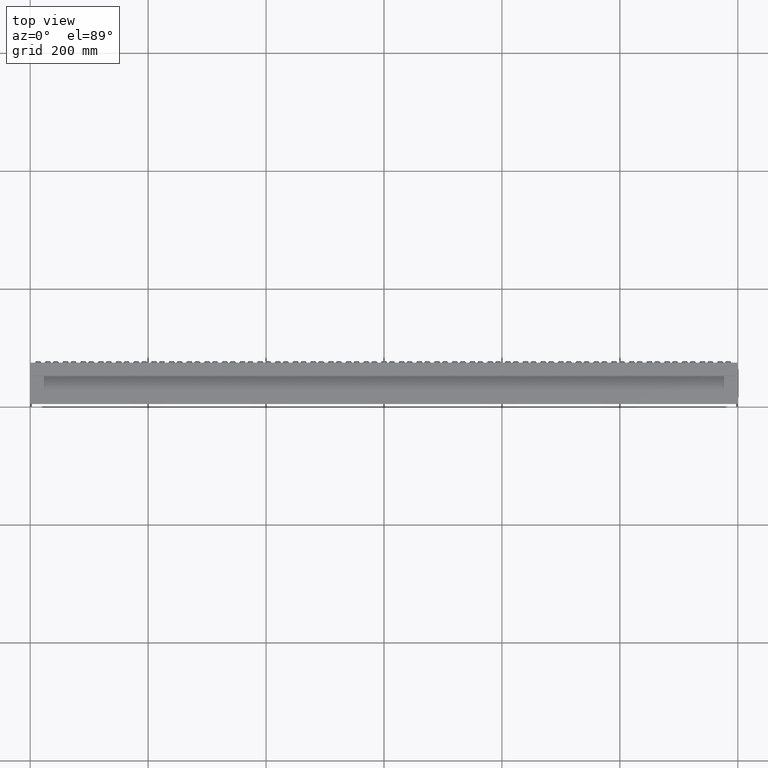
[diagram: clean part render]
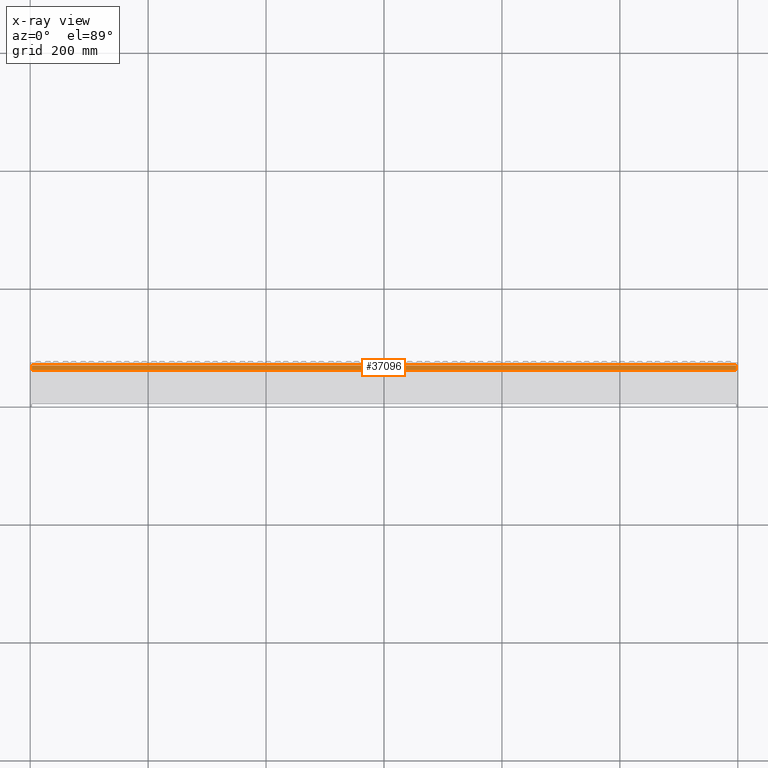
[diagram: x-ray — body ghosted, one internal face saturated and labeled with its STEP entity id]
A machine part, top view, then the same camera in x-ray: the body is ghosted and one INTERNAL B-rep face — a face not visible from any outside direction — is saturated and labeled: STEP entity #37096.
In plain terms, the highlighted planar face has unit normal (-0, 0, 1).
Its self-contained STEP definition (entity closure, byte-faithful):
#382 = CARTESIAN_POINT ( 'NONE',  ( -597.0000000000000000, 70.00000000000000000, -291.2500000000000000 ) ) ;
#3461 = VERTEX_POINT ( 'NONE', #27572 ) ;
#4035 = LINE ( 'NONE', #30119, #38581 ) ;
#4358 = EDGE_CURVE ( 'NONE', #19887, #8905, #4035, .T. ) ;
#6281 = VECTOR ( 'NONE', #37826, 1000.000000000000000 ) ;
#7069 = EDGE_CURVE ( 'NONE', #19887, #21088, #14431, .T. ) ;
#7824 = ORIENTED_EDGE ( 'NONE', *, *, #7069, .T. ) ;
#8242 = DIRECTION ( 'NONE',  ( -1.000000000000000000, -0.0000000000000000000, -0.0000000000000000000 ) ) ;
#8905 = VERTEX_POINT ( 'NONE', #382 ) ;
#9331 = CARTESIAN_POINT ( 'NONE',  ( -597.0000000000000000, 70.00000000000000000, -291.2500000000000000 ) ) ;
#9595 = DIRECTION ( 'NONE',  ( -0.0000000000000000000, 0.0000000000000000000, 1.000000000000000000 ) ) ;
#14431 = LINE ( 'NONE', #31686, #6281 ) ;
#14660 = DIRECTION ( 'NONE',  ( -1.000000000000000000, -0.0000000000000000000, -0.0000000000000000000 ) ) ;
#15476 = DIRECTION ( 'NONE',  ( 0.0000000000000000000, -1.000000000000000000, 0.0000000000000000000 ) ) ;
#16540 = LINE ( 'NONE', #17645, #30494 ) ;
#17644 = EDGE_CURVE ( 'NONE', #8905, #3461, #19867, .T. ) ;
#17645 = CARTESIAN_POINT ( 'NONE',  ( 605.1394102980498200, 62.00000000000000700, -291.2500000000000000 ) ) ;
#18598 = PLANE ( 'NONE',  #35477 ) ;
#19867 = LINE ( 'NONE', #9331, #24223 ) ;
#19887 = VERTEX_POINT ( 'NONE', #20276 ) ;
#20276 = CARTESIAN_POINT ( 'NONE',  ( 597.0000000000000000, 70.00000000000000000, -291.2500000000000000 ) ) ;
#21088 = VERTEX_POINT ( 'NONE', #35041 ) ;
#22031 = ORIENTED_EDGE ( 'NONE', *, *, #4358, .F. ) ;
#24223 = VECTOR ( 'NONE', #15476, 1000.000000000000000 ) ;
#26564 = EDGE_CURVE ( 'NONE', #21088, #3461, #16540, .T. ) ;
#27572 = CARTESIAN_POINT ( 'NONE',  ( -597.0000000000000000, 62.00000000000000700, -291.2500000000000000 ) ) ;
#28613 = ORIENTED_EDGE ( 'NONE', *, *, #17644, .F. ) ;
#30119 = CARTESIAN_POINT ( 'NONE',  ( 605.1394102980498200, 70.00000000000000000, -291.2500000000000000 ) ) ;
#30494 = VECTOR ( 'NONE', #8242, 1000.000000000000000 ) ;
#30942 = DIRECTION ( 'NONE',  ( 1.000000000000000000, 0.0000000000000000000, 0.0000000000000000000 ) ) ;
#31204 = FACE_OUTER_BOUND ( 'NONE', #34868, .T. ) ;
#31362 = CARTESIAN_POINT ( 'NONE',  ( 605.1394102980498200, 70.00000000000000000, -291.2500000000000000 ) ) ;
#31686 = CARTESIAN_POINT ( 'NONE',  ( 597.0000000000000000, 70.00000000000000000, -291.2500000000000000 ) ) ;
#34868 = EDGE_LOOP ( 'NONE', ( #22031, #7824, #37362, #28613 ) ) ;
#35041 = CARTESIAN_POINT ( 'NONE',  ( 597.0000000000000000, 62.00000000000000700, -291.2500000000000000 ) ) ;
#35477 = AXIS2_PLACEMENT_3D ( 'NONE', #31362, #9595, #30942 ) ;
#37096 = ADVANCED_FACE ( 'NONE', ( #31204 ), #18598, .F. ) ;
#37362 = ORIENTED_EDGE ( 'NONE', *, *, #26564, .T. ) ;
#37826 = DIRECTION ( 'NONE',  ( 0.0000000000000000000, -1.000000000000000000, 0.0000000000000000000 ) ) ;
#38581 = VECTOR ( 'NONE', #14660, 1000.000000000000000 ) ;